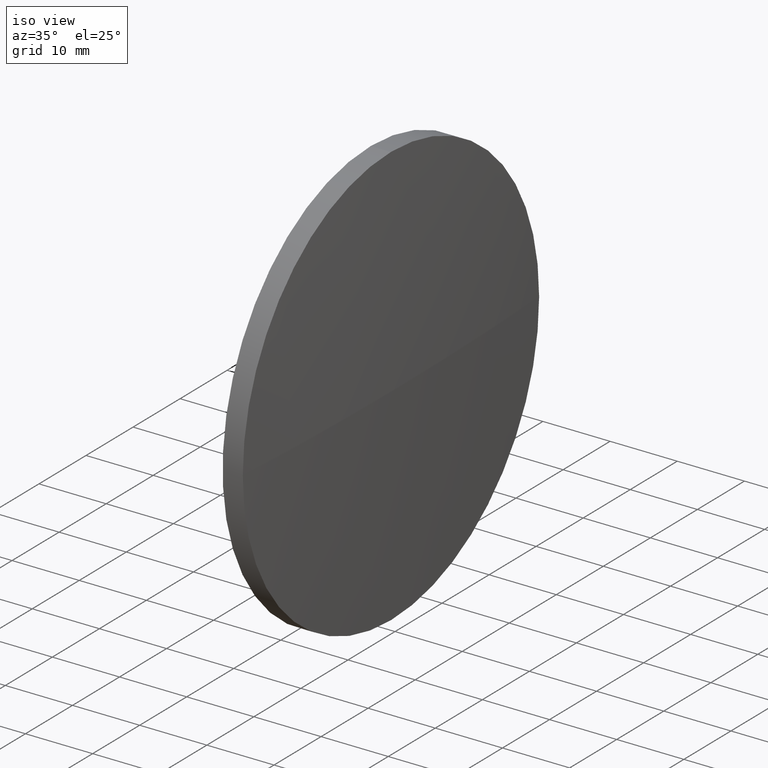
[diagram: clean part render]
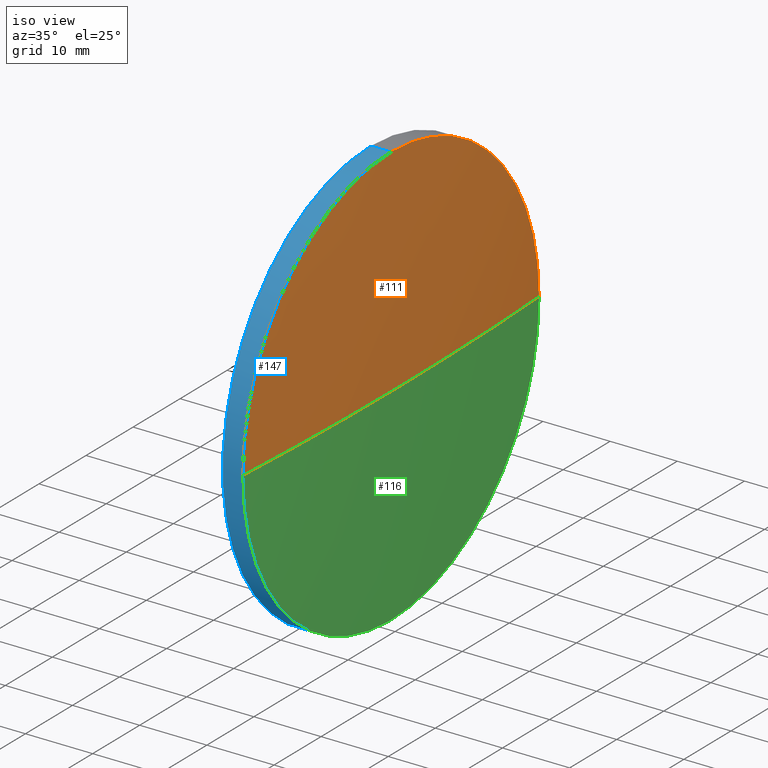
[diagram: same view with three faces highlighted in distinct colors, each labeled with its STEP entity id]
A machine part, iso view with three faces highlighted in distinct colors.
Their STEP definitions:

[orange] entity #111 — the highlighted spherical surface has radius 533.933 mm.
#3 = CARTESIAN_POINT ( 'NONE',  ( 239.3701037227096700, 130.0418907599245100, 0.0000000000000000000 ) ) ;
#8 = EDGE_CURVE ( 'NONE', #51, #98, #100, .T. ) ;
#14 = ORIENTED_EDGE ( 'NONE', *, *, #74, .F. ) ;
#20 = DIRECTION ( 'NONE',  ( 0.0000000000000000000, 0.0000000000000000000, -1.000000000000000000 ) ) ;
#21 = CARTESIAN_POINT ( 'NONE',  ( -293.6326382127700200, 130.0418907599257100, 0.0000000000000000000 ) ) ;
#23 = CARTESIAN_POINT ( 'NONE',  ( -293.6326382127700200, 130.0418907599257100, 0.0000000000000000000 ) ) ;
#25 = ORIENTED_EDGE ( 'NONE', *, *, #102, .F. ) ;
#29 = AXIS2_PLACEMENT_3D ( 'NONE', #103, #42, #53 ) ;
#37 = DIRECTION ( 'NONE',  ( -1.000000000000000000, 0.0000000000000000000, 0.0000000000000000000 ) ) ;
#42 = DIRECTION ( 'NONE',  ( -1.000000000000000000, -0.0000000000000000000, -0.0000000000000000000 ) ) ;
#44 = SPHERICAL_SURFACE ( 'NONE', #117, 533.9327419354797300 ) ;
#51 = VERTEX_POINT ( 'NONE', #107 ) ;
#53 = DIRECTION ( 'NONE',  ( 0.0000000000000000000, 0.0000000000000000000, 1.000000000000000000 ) ) ;
#55 = CARTESIAN_POINT ( 'NONE',  ( 239.3701037227096700, 161.5418907599248500, 3.857637417314063300E-015 ) ) ;
#61 = CIRCLE ( 'NONE', #29, 31.50000000000000000 ) ;
#74 = EDGE_CURVE ( 'NONE', #156, #174, #61, .T. ) ;
#80 = CIRCLE ( 'NONE', #86, 31.50000000000000000 ) ;
#86 = AXIS2_PLACEMENT_3D ( 'NONE', #3, #93, #162 ) ;
#90 = DIRECTION ( 'NONE',  ( 0.0000000000000000000, -1.224646799147353200E-016, 1.000000000000000000 ) ) ;
#93 = DIRECTION ( 'NONE',  ( -1.000000000000000000, -0.0000000000000000000, -0.0000000000000000000 ) ) ;
#98 = VERTEX_POINT ( 'NONE', #55 ) ;
#99 = CIRCLE ( 'NONE', #128, 533.9327419354796100 ) ;
#100 = CIRCLE ( 'NONE', #163, 533.9327419354797300 ) ;
#102 = EDGE_CURVE ( 'NONE', #174, #98, #80, .T. ) ;
#103 = CARTESIAN_POINT ( 'NONE',  ( 239.3701037227096700, 130.0418907599245100, 0.0000000000000000000 ) ) ;
#106 = ORIENTED_EDGE ( 'NONE', *, *, #8, .T. ) ;
#107 = CARTESIAN_POINT ( 'NONE',  ( 240.3001037227096500, 130.0418907599256800, 0.0000000000000000000 ) ) ;
#111 = ADVANCED_FACE ( 'NONE', ( #169 ), #44, .T. ) ;
#117 = AXIS2_PLACEMENT_3D ( 'NONE', #21, #126, #160 ) ;
#126 = DIRECTION ( 'NONE',  ( 0.0000000000000000000, 0.0000000000000000000, 1.000000000000000000 ) ) ;
#128 = AXIS2_PLACEMENT_3D ( 'NONE', #23, #20, #37 ) ;
#142 = CARTESIAN_POINT ( 'NONE',  ( 239.3701037227096700, 130.0418907599245100, 31.50000000000000000 ) ) ;
#151 = EDGE_LOOP ( 'NONE', ( #170, #106, #25, #14 ) ) ;
#152 = CARTESIAN_POINT ( 'NONE',  ( -293.6326382127700200, 130.0418907599257100, 0.0000000000000000000 ) ) ;
#156 = VERTEX_POINT ( 'NONE', #175 ) ;
#160 = DIRECTION ( 'NONE',  ( 0.0000000000000000000, -1.000000000000000000, 0.0000000000000000000 ) ) ;
#162 = DIRECTION ( 'NONE',  ( 0.0000000000000000000, 0.0000000000000000000, 1.000000000000000000 ) ) ;
#163 = AXIS2_PLACEMENT_3D ( 'NONE', #152, #90, #167 ) ;
#166 = EDGE_CURVE ( 'NONE', #51, #156, #99, .T. ) ;
#167 = DIRECTION ( 'NONE',  ( 0.0000000000000000000, -1.000000000000000000, -1.224646799147353200E-016 ) ) ;
#169 = FACE_OUTER_BOUND ( 'NONE', #151, .T. ) ;
#170 = ORIENTED_EDGE ( 'NONE', *, *, #166, .F. ) ;
#174 = VERTEX_POINT ( 'NONE', #142 ) ;
#175 = CARTESIAN_POINT ( 'NONE',  ( 239.3701037227096700, 98.54189075992532300, 0.0000000000000000000 ) ) ;

[blue] entity #147 — the highlighted cylindrical surface (partial cylindrical patch) has radius 31.5 mm, axis along (-1, -0, -0).
#1 = ORIENTED_EDGE ( 'NONE', *, *, #140, .T. ) ;
#5 = DIRECTION ( 'NONE',  ( -1.000000000000000000, -0.0000000000000000000, -0.0000000000000000000 ) ) ;
#7 = ORIENTED_EDGE ( 'NONE', *, *, #74, .T. ) ;
#9 = VECTOR ( 'NONE', #184, 1000.000000000000000 ) ;
#12 = EDGE_CURVE ( 'NONE', #17, #39, #161, .T. ) ;
#17 = VERTEX_POINT ( 'NONE', #30 ) ;
#29 = AXIS2_PLACEMENT_3D ( 'NONE', #103, #42, #53 ) ;
#30 = CARTESIAN_POINT ( 'NONE',  ( 239.3701037227096700, 130.0418907599245100, -31.50000000000000000 ) ) ;
#31 = CARTESIAN_POINT ( 'NONE',  ( 236.3701037227096700, 130.0418907599245100, 31.50000000000000000 ) ) ;
#33 = CARTESIAN_POINT ( 'NONE',  ( 236.3701037227096700, 130.0418907599245100, 0.0000000000000000000 ) ) ;
#35 = VECTOR ( 'NONE', #120, 1000.000000000000000 ) ;
#36 = AXIS2_PLACEMENT_3D ( 'NONE', #33, #155, #121 ) ;
#39 = VERTEX_POINT ( 'NONE', #57 ) ;
#40 = DIRECTION ( 'NONE',  ( -1.000000000000000000, -0.0000000000000000000, -0.0000000000000000000 ) ) ;
#41 = ORIENTED_EDGE ( 'NONE', *, *, #12, .F. ) ;
#42 = DIRECTION ( 'NONE',  ( -1.000000000000000000, -0.0000000000000000000, -0.0000000000000000000 ) ) ;
#45 = VERTEX_POINT ( 'NONE', #31 ) ;
#52 = EDGE_CURVE ( 'NONE', #39, #45, #146, .T. ) ;
#53 = DIRECTION ( 'NONE',  ( 0.0000000000000000000, 0.0000000000000000000, 1.000000000000000000 ) ) ;
#54 = FACE_OUTER_BOUND ( 'NONE', #94, .T. ) ;
#57 = CARTESIAN_POINT ( 'NONE',  ( 236.3701037227096700, 130.0418907599245100, -31.50000000000000000 ) ) ;
#61 = CIRCLE ( 'NONE', #29, 31.50000000000000000 ) ;
#74 = EDGE_CURVE ( 'NONE', #156, #174, #61, .T. ) ;
#78 = EDGE_CURVE ( 'NONE', #174, #45, #149, .T. ) ;
#84 = CARTESIAN_POINT ( 'NONE',  ( 239.3701037227096700, 130.0418907599245100, 0.0000000000000000000 ) ) ;
#94 = EDGE_LOOP ( 'NONE', ( #41, #1, #7, #131, #108 ) ) ;
#101 = CARTESIAN_POINT ( 'NONE',  ( 217.3311486608872700, 130.0418907599245100, 31.50000000000000000 ) ) ;
#103 = CARTESIAN_POINT ( 'NONE',  ( 239.3701037227096700, 130.0418907599245100, 0.0000000000000000000 ) ) ;
#108 = ORIENTED_EDGE ( 'NONE', *, *, #52, .F. ) ;
#110 = DIRECTION ( 'NONE',  ( 0.0000000000000000000, 0.0000000000000000000, 1.000000000000000000 ) ) ;
#112 = CARTESIAN_POINT ( 'NONE',  ( 217.3311486608872700, 130.0418907599245100, 0.0000000000000000000 ) ) ;
#119 = AXIS2_PLACEMENT_3D ( 'NONE', #84, #40, #144 ) ;
#120 = DIRECTION ( 'NONE',  ( -1.000000000000000000, -0.0000000000000000000, -0.0000000000000000000 ) ) ;
#121 = DIRECTION ( 'NONE',  ( 0.0000000000000000000, 0.0000000000000000000, 1.000000000000000000 ) ) ;
#131 = ORIENTED_EDGE ( 'NONE', *, *, #78, .T. ) ;
#132 = CIRCLE ( 'NONE', #119, 31.50000000000000000 ) ;
#140 = EDGE_CURVE ( 'NONE', #17, #156, #132, .T. ) ;
#141 = CYLINDRICAL_SURFACE ( 'NONE', #179, 31.50000000000000000 ) ;
#142 = CARTESIAN_POINT ( 'NONE',  ( 239.3701037227096700, 130.0418907599245100, 31.50000000000000000 ) ) ;
#144 = DIRECTION ( 'NONE',  ( 0.0000000000000000000, 0.0000000000000000000, 1.000000000000000000 ) ) ;
#146 = CIRCLE ( 'NONE', #36, 31.50000000000000000 ) ;
#147 = ADVANCED_FACE ( 'NONE', ( #54 ), #141, .T. ) ;
#149 = LINE ( 'NONE', #101, #35 ) ;
#155 = DIRECTION ( 'NONE',  ( -1.000000000000000000, -0.0000000000000000000, -0.0000000000000000000 ) ) ;
#156 = VERTEX_POINT ( 'NONE', #175 ) ;
#161 = LINE ( 'NONE', #185, #9 ) ;
#174 = VERTEX_POINT ( 'NONE', #142 ) ;
#175 = CARTESIAN_POINT ( 'NONE',  ( 239.3701037227096700, 98.54189075992532300, 0.0000000000000000000 ) ) ;
#179 = AXIS2_PLACEMENT_3D ( 'NONE', #112, #5, #110 ) ;
#184 = DIRECTION ( 'NONE',  ( -1.000000000000000000, -0.0000000000000000000, -0.0000000000000000000 ) ) ;
#185 = CARTESIAN_POINT ( 'NONE',  ( 217.3311486608872700, 130.0418907599245100, -31.50000000000000000 ) ) ;

[green] entity #116 — the highlighted spherical surface has radius 533.933 mm.
#2 = AXIS2_PLACEMENT_3D ( 'NONE', #176, #177, #114 ) ;
#8 = EDGE_CURVE ( 'NONE', #51, #98, #100, .T. ) ;
#17 = VERTEX_POINT ( 'NONE', #30 ) ;
#20 = DIRECTION ( 'NONE',  ( 0.0000000000000000000, 0.0000000000000000000, -1.000000000000000000 ) ) ;
#23 = CARTESIAN_POINT ( 'NONE',  ( -293.6326382127700200, 130.0418907599257100, 0.0000000000000000000 ) ) ;
#27 = ORIENTED_EDGE ( 'NONE', *, *, #166, .T. ) ;
#30 = CARTESIAN_POINT ( 'NONE',  ( 239.3701037227096700, 130.0418907599245100, -31.50000000000000000 ) ) ;
#37 = DIRECTION ( 'NONE',  ( -1.000000000000000000, 0.0000000000000000000, 0.0000000000000000000 ) ) ;
#38 = DIRECTION ( 'NONE',  ( 0.0000000000000000000, -1.000000000000000000, 0.0000000000000000000 ) ) ;
#40 = DIRECTION ( 'NONE',  ( -1.000000000000000000, -0.0000000000000000000, -0.0000000000000000000 ) ) ;
#46 = ORIENTED_EDGE ( 'NONE', *, *, #140, .F. ) ;
#51 = VERTEX_POINT ( 'NONE', #107 ) ;
#55 = CARTESIAN_POINT ( 'NONE',  ( 239.3701037227096700, 161.5418907599248500, 3.857637417314063300E-015 ) ) ;
#62 = CARTESIAN_POINT ( 'NONE',  ( -293.6326382127700200, 130.0418907599257100, 0.0000000000000000000 ) ) ;
#66 = EDGE_LOOP ( 'NONE', ( #115, #27, #46, #88 ) ) ;
#84 = CARTESIAN_POINT ( 'NONE',  ( 239.3701037227096700, 130.0418907599245100, 0.0000000000000000000 ) ) ;
#87 = SPHERICAL_SURFACE ( 'NONE', #125, 533.9327419354797300 ) ;
#88 = ORIENTED_EDGE ( 'NONE', *, *, #95, .F. ) ;
#90 = DIRECTION ( 'NONE',  ( 0.0000000000000000000, -1.224646799147353200E-016, 1.000000000000000000 ) ) ;
#95 = EDGE_CURVE ( 'NONE', #98, #17, #122, .T. ) ;
#98 = VERTEX_POINT ( 'NONE', #55 ) ;
#99 = CIRCLE ( 'NONE', #128, 533.9327419354796100 ) ;
#100 = CIRCLE ( 'NONE', #163, 533.9327419354797300 ) ;
#107 = CARTESIAN_POINT ( 'NONE',  ( 240.3001037227096500, 130.0418907599256800, 0.0000000000000000000 ) ) ;
#114 = DIRECTION ( 'NONE',  ( 0.0000000000000000000, 0.0000000000000000000, 1.000000000000000000 ) ) ;
#115 = ORIENTED_EDGE ( 'NONE', *, *, #8, .F. ) ;
#116 = ADVANCED_FACE ( 'NONE', ( #130 ), #87, .T. ) ;
#119 = AXIS2_PLACEMENT_3D ( 'NONE', #84, #40, #144 ) ;
#122 = CIRCLE ( 'NONE', #2, 31.50000000000000000 ) ;
#125 = AXIS2_PLACEMENT_3D ( 'NONE', #62, #172, #38 ) ;
#128 = AXIS2_PLACEMENT_3D ( 'NONE', #23, #20, #37 ) ;
#130 = FACE_OUTER_BOUND ( 'NONE', #66, .T. ) ;
#132 = CIRCLE ( 'NONE', #119, 31.50000000000000000 ) ;
#140 = EDGE_CURVE ( 'NONE', #17, #156, #132, .T. ) ;
#144 = DIRECTION ( 'NONE',  ( 0.0000000000000000000, 0.0000000000000000000, 1.000000000000000000 ) ) ;
#152 = CARTESIAN_POINT ( 'NONE',  ( -293.6326382127700200, 130.0418907599257100, 0.0000000000000000000 ) ) ;
#156 = VERTEX_POINT ( 'NONE', #175 ) ;
#163 = AXIS2_PLACEMENT_3D ( 'NONE', #152, #90, #167 ) ;
#166 = EDGE_CURVE ( 'NONE', #51, #156, #99, .T. ) ;
#167 = DIRECTION ( 'NONE',  ( 0.0000000000000000000, -1.000000000000000000, -1.224646799147353200E-016 ) ) ;
#172 = DIRECTION ( 'NONE',  ( 0.0000000000000000000, 0.0000000000000000000, 1.000000000000000000 ) ) ;
#175 = CARTESIAN_POINT ( 'NONE',  ( 239.3701037227096700, 98.54189075992532300, 0.0000000000000000000 ) ) ;
#176 = CARTESIAN_POINT ( 'NONE',  ( 239.3701037227096700, 130.0418907599245100, 0.0000000000000000000 ) ) ;
#177 = DIRECTION ( 'NONE',  ( -1.000000000000000000, -0.0000000000000000000, -0.0000000000000000000 ) ) ;